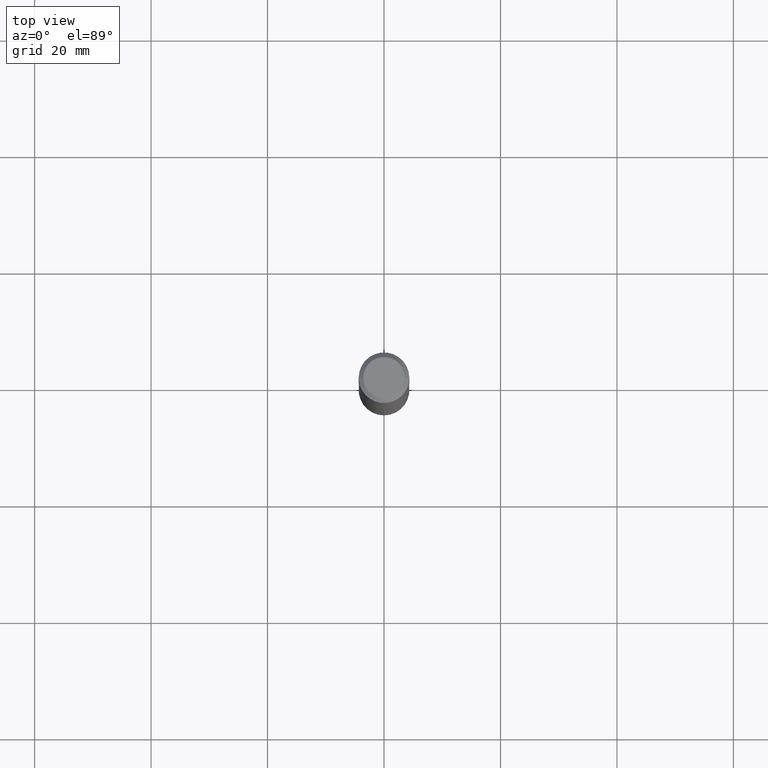
[diagram: clean part render]
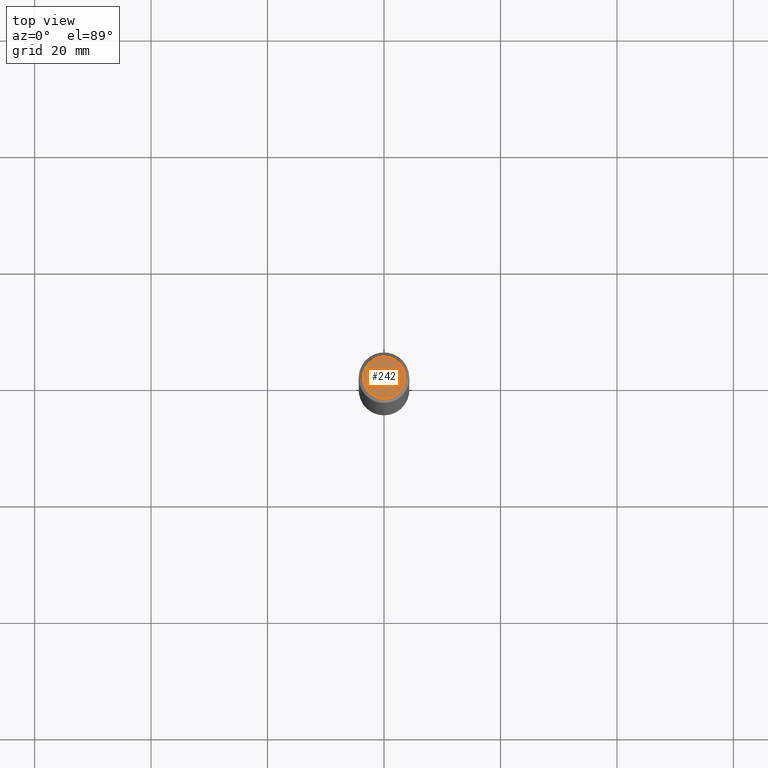
[diagram: same view with one face highlighted and labeled with its STEP entity id]
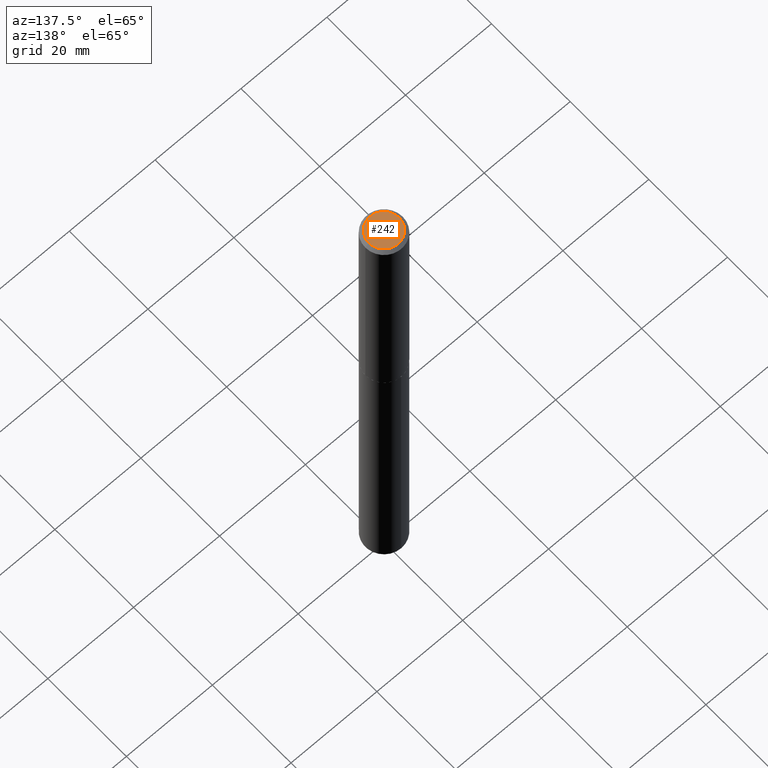
[diagram: same view with one face highlighted and labeled with its STEP entity id]
A machine part, top view. The second image highlights one B-rep face of the part: STEP entity #242.
A second angle (auxiliary view) of the same face is appended — the face is thin or edge-on in the first view.
In plain terms, the highlighted planar face has unit normal (0, -0, -1).
Its self-contained STEP definition (entity closure, byte-faithful):
#1 = PLANE ( 'NONE',  #218 ) ;
#26 = VERTEX_POINT ( 'NONE', #290 ) ;
#27 = DIRECTION ( 'NONE',  ( -2.445468806185136597E-29, 3.491481338843145583E-15, 1.000000000000000000 ) ) ;
#28 = EDGE_CURVE ( 'NONE', #26, #370, #122, .T. ) ;
#62 = DIRECTION ( 'NONE',  ( 1.000000000000000000, -6.982962677686265922E-15, 4.876177996939016778E-29 ) ) ;
#63 = CARTESIAN_POINT ( 'NONE',  ( 0.1400000000000000133, -1.122219396822619173E-15, 2.388061258410762627E-19 ) ) ;
#120 = CARTESIAN_POINT ( 'NONE',  ( -2.919964657261599251E-48, 4.168935659749557485E-34, 1.194030629168671885E-19 ) ) ;
#122 = CIRCLE ( 'NONE', #230, 0.1400000000000000133 ) ;
#143 = DIRECTION ( 'NONE',  ( 1.000000000000000000, -6.982962677686265922E-15, 4.876177996939016778E-29 ) ) ;
#168 = CARTESIAN_POINT ( 'NONE',  ( -5.839929314523198503E-48, 8.337871319499114970E-34, 2.388061258337343770E-19 ) ) ;
#174 = FACE_OUTER_BOUND ( 'NONE', #196, .T. ) ;
#196 = EDGE_LOOP ( 'NONE', ( #282, #275 ) ) ;
#213 = EDGE_CURVE ( 'NONE', #370, #26, #281, .T. ) ;
#218 = AXIS2_PLACEMENT_3D ( 'NONE', #120, #317, #292 ) ;
#230 = AXIS2_PLACEMENT_3D ( 'NONE', #168, #338, #143 ) ;
#242 = ADVANCED_FACE ( 'NONE', ( #174 ), #1, .F. ) ;
#275 = ORIENTED_EDGE ( 'NONE', *, *, #213, .T. ) ;
#281 = CIRCLE ( 'NONE', #325, 0.1400000000000000133 ) ;
#282 = ORIENTED_EDGE ( 'NONE', *, *, #28, .T. ) ;
#290 = CARTESIAN_POINT ( 'NONE',  ( -0.1400000000000000133, 1.032169170795500864E-15, 2.388061258267069475E-19 ) ) ;
#292 = DIRECTION ( 'NONE',  ( -1.000000000000000000, 6.982962677686265922E-15, -4.876176775795935793E-29 ) ) ;
#317 = DIRECTION ( 'NONE',  ( 2.438088387897960049E-29, -3.491481338843145188E-15, -1.000000000000000000 ) ) ;
#322 = CARTESIAN_POINT ( 'NONE',  ( -5.839929314523198503E-48, 8.337871319499114970E-34, 2.388061258337343770E-19 ) ) ;
#325 = AXIS2_PLACEMENT_3D ( 'NONE', #322, #27, #62 ) ;
#338 = DIRECTION ( 'NONE',  ( -2.445468806185136597E-29, 3.491481338843145583E-15, 1.000000000000000000 ) ) ;
#370 = VERTEX_POINT ( 'NONE', #63 ) ;